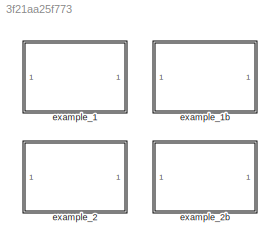
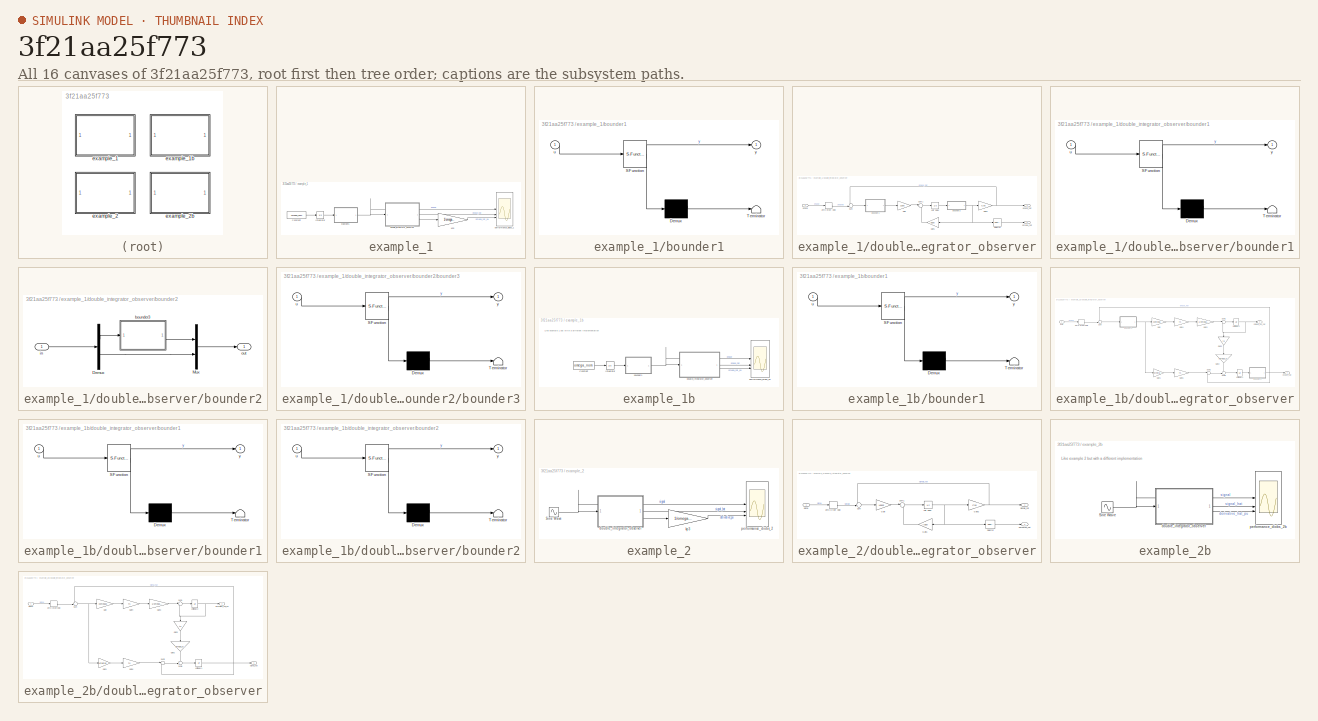
[diagram: thumbnail index - all 16 canvases of the model, root first then tree order]
MODEL slx_3f21aa25f773
KIND model
CONFIG AbsTol = auto
CONFIG EnableMultiTasking = off
CONFIG FixedStep = auto
CONFIG MaxStep = auto
CONFIG MinStep = auto
CONFIG RelTol = 1e-3
CONFIG SampleTimeConstraint = Unconstrained
CONFIG SolverName = VariableStepAuto
CONFIG StartTime = 0.0
CONFIG StopTime = 0.2
BLOCK [SubSystem] example_1
BLOCK [Constant] example_1/Constant
  Value = omega_nom
BLOCK [Integrator] example_1/Integrator
BLOCK [SubSystem] example_1/bounder1
  ErrorFcn = Stateflow.Translate.translate
  PermitHierarchicalResolution = ExplicitOnly
  SFBlockType = MATLAB Function
  TreatAsAtomicUnit = on
  TreatAsGroupedWhenPropagatingVariantConditions = off
BLOCK [Demux] example_1/bounder1/ Demux 
  Outputs = 1
BLOCK [S-Function] example_1/bounder1/ SFunction 
  EnableBusSupport = off
  FunctionName = sf_sfun
  PortCounts = [1 2]
  SFcnIsStateOwnerBlock = off
  SFunctionDeploymentMode = off
  Tag = Stateflow S-Function 1
BLOCK [Terminator] example_1/bounder1/ Terminator 
BLOCK [Inport] example_1/bounder1/u
BLOCK [Outport] example_1/bounder1/y
  VectorParamsAs1DForOutWhenUnconnected = off
BLOCK [SubSystem] example_1/double_integrator_observer
BLOCK [Gain] example_1/double_integrator_observer/Gain
  Gain = Ldso
  Multiplication = Matrix(K*u)
BLOCK [Gain] example_1/double_integrator_observer/Gain1
  Gain = Adso
  Multiplication = Matrix(K*u)
  NameLocation = top
BLOCK [Gain] example_1/double_integrator_observer/Gain2
  Gain = Cso
  Multiplication = Matrix(K*u)
BLOCK [Selector] example_1/double_integrator_observer/Selector
  IndexOptions = Index vector (dialog)
  Indices = 2
  InputPortWidth = 2
  OutputSizes = 1
BLOCK [Sum] example_1/double_integrator_observer/Sum
  Inputs = -+|
BLOCK [Sum] example_1/double_integrator_observer/Sum1
  Inputs = |++
BLOCK [UnitDelay] example_1/double_integrator_observer/Unit Delay
  HasFrameUpgradeWarning = on
  SampleTime = -1
BLOCK [ZeroOrderHold] example_1/double_integrator_observer/Zero-Order Hold
  SampleTime = ts
BLOCK [SubSystem] example_1/double_integrator_observer/bounder1
  ErrorFcn = Stateflow.Translate.translate
  PermitHierarchicalResolution = ExplicitOnly
  SFBlockType = MATLAB Function
  TreatAsAtomicUnit = on
  TreatAsGroupedWhenPropagatingVariantConditions = off
BLOCK [Demux] example_1/double_integrator_observer/bounder1/ Demux 
  Outputs = 1
BLOCK [S-Function] example_1/double_integrator_observer/bounder1/ SFunction 
  EnableBusSupport = off
  FunctionName = sf_sfun
  PortCounts = [1 2]
  SFcnIsStateOwnerBlock = off
  SFunctionDeploymentMode = off
  Tag = Stateflow S-Function 8
BLOCK [Terminator] example_1/double_integrator_observer/bounder1/ Terminator 
BLOCK [Inport] example_1/double_integrator_observer/bounder1/u
BLOCK [Outport] example_1/double_integrator_observer/bounder1/y
  VectorParamsAs1DForOutWhenUnconnected = off
BLOCK [SubSystem] example_1/double_integrator_observer/bounder2
BLOCK [Demux] example_1/double_integrator_observer/bounder2/Demux
  Outputs = 2
BLOCK [Mux] example_1/double_integrator_observer/bounder2/Mux
  DisplayOption = bar
  Inputs = 2
BLOCK [SubSystem] example_1/double_integrator_observer/bounder2/bounder3
  ErrorFcn = Stateflow.Translate.translate
  PermitHierarchicalResolution = ExplicitOnly
  SFBlockType = MATLAB Function
  TreatAsAtomicUnit = on
  TreatAsGroupedWhenPropagatingVariantConditions = off
BLOCK [Demux] example_1/double_integrator_observer/bounder2/bounder3/ Demux 
  Outputs = 1
BLOCK [S-Function] example_1/double_integrator_observer/bounder2/bounder3/ SFunction 
  EnableBusSupport = off
  FunctionName = sf_sfun
  PortCounts = [1 2]
  SFcnIsStateOwnerBlock = off
  SFunctionDeploymentMode = off
  Tag = Stateflow S-Function 2
BLOCK [Terminator] example_1/double_integrator_observer/bounder2/bounder3/ Terminator 
BLOCK [Inport] example_1/double_integrator_observer/bounder2/bounder3/u
BLOCK [Outport] example_1/double_integrator_observer/bounder2/bounder3/y
  VectorParamsAs1DForOutWhenUnconnected = off
BLOCK [Inport] example_1/double_integrator_observer/bounder2/in
BLOCK [Outport] example_1/double_integrator_observer/bounder2/out
BLOCK [Outport] example_1/double_integrator_observer/omega_hat
  Port = 2
BLOCK [Inport] example_1/double_integrator_observer/phase
BLOCK [Outport] example_1/double_integrator_observer/phase_hat
BLOCK [Gain] example_1/kp3
  Gain = 1/omega_nom
  OutDataTypeStr = Inherit: Same as input
  ParamDataTypeStr = Inherit: Same as input
  SaturateOnIntegerOverflow = on
BLOCK [Scope] example_1/performance_diobs_1
  Floating = off
  NumInputPorts = 3
  ScopeSpecificationString = Simulink.scopes.TimeScopeBlockCfg('CurrentConfiguration', extmgr.ConfigurationSet(extmgr.Configuration('Core','General UI',true,'DisplayFullSourceName',true,'ShowMainToolbar',true,'FigureColor',[0.129411764705882 0.129411764705882 0.129411764705882]),extmgr.Configuration('Sources','WiredSimulink',true,'DataLogging',false,'DataLoggingVariableName','ScopeData','DataLoggingLimitDataPoints',false,'Dat...<+2532ch>
BLOCK [SubSystem] example_1b
BLOCK [Constant] example_1b/Constant
  Value = omega_nom
BLOCK [Integrator] example_1b/Integrator
BLOCK [SubSystem] example_1b/bounder1
  ErrorFcn = Stateflow.Translate.translate
  PermitHierarchicalResolution = ExplicitOnly
  SFBlockType = MATLAB Function
  TreatAsAtomicUnit = on
  TreatAsGroupedWhenPropagatingVariantConditions = off
BLOCK [Demux] example_1b/bounder1/ Demux 
  Outputs = 1
BLOCK [S-Function] example_1b/bounder1/ SFunction 
  EnableBusSupport = off
  FunctionName = sf_sfun
  PortCounts = [1 2]
  SFcnIsStateOwnerBlock = off
  SFunctionDeploymentMode = off
  Tag = Stateflow S-Function 3
BLOCK [Terminator] example_1b/bounder1/ Terminator 
BLOCK [Inport] example_1b/bounder1/u
BLOCK [Outport] example_1b/bounder1/y
  VectorParamsAs1DForOutWhenUnconnected = off
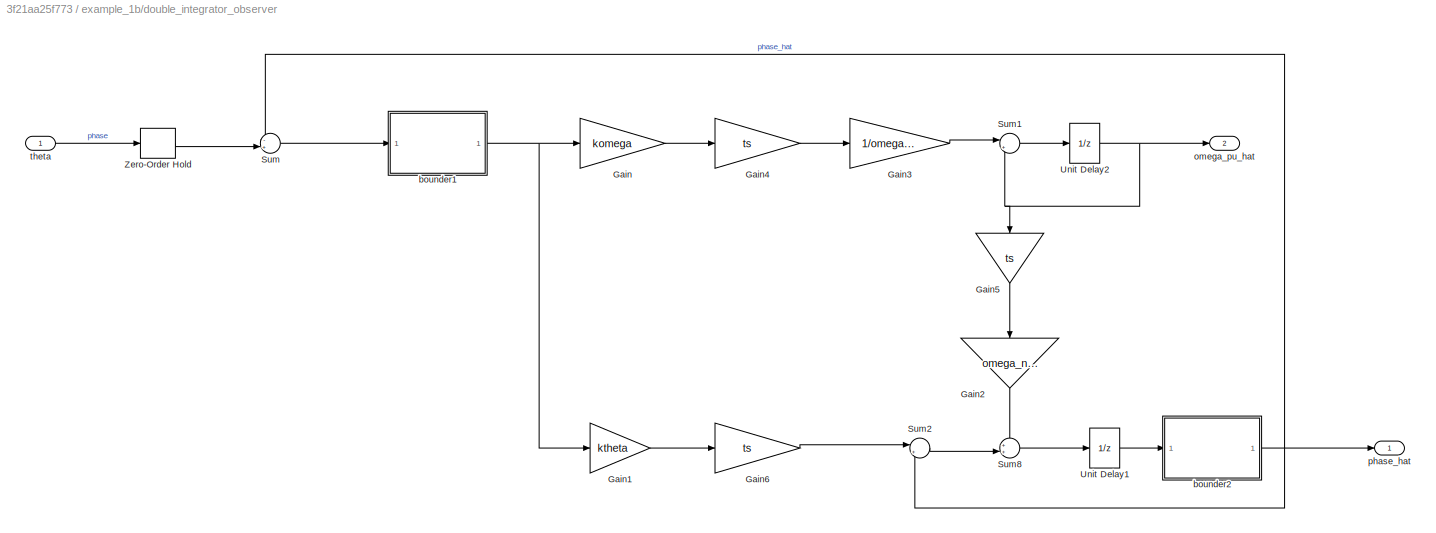
BLOCK [SubSystem] example_1b/double_integrator_observer
BLOCK [Gain] example_1b/double_integrator_observer/Gain
  Gain = komega
BLOCK [Gain] example_1b/double_integrator_observer/Gain1
  Gain = ktheta
BLOCK [Gain] example_1b/double_integrator_observer/Gain2
  Gain = omega_nom
  NameLocation = left
BLOCK [Gain] example_1b/double_integrator_observer/Gain3
  Gain = 1/omega_nom
BLOCK [Gain] example_1b/double_integrator_observer/Gain4
  Gain = ts
BLOCK [Gain] example_1b/double_integrator_observer/Gain5
  Gain = ts
  NameLocation = left
BLOCK [Gain] example_1b/double_integrator_observer/Gain6
  Gain = ts
BLOCK [Sum] example_1b/double_integrator_observer/Sum
  Inputs = -+|
BLOCK [Sum] example_1b/double_integrator_observer/Sum1
  Inputs = |++
BLOCK [Sum] example_1b/double_integrator_observer/Sum2
  Inputs = |++
BLOCK [Sum] example_1b/double_integrator_observer/Sum8
  Inputs = ++|
BLOCK [UnitDelay] example_1b/double_integrator_observer/Unit Delay1
  HasFrameUpgradeWarning = on
  NameLocation = top
  SampleTime = -1
BLOCK [UnitDelay] example_1b/double_integrator_observer/Unit Delay2
  HasFrameUpgradeWarning = on
  SampleTime = -1
BLOCK [ZeroOrderHold] example_1b/double_integrator_observer/Zero-Order Hold
  SampleTime = ts
BLOCK [SubSystem] example_1b/double_integrator_observer/bounder1
  ErrorFcn = Stateflow.Translate.translate
  NameLocation = top
  PermitHierarchicalResolution = ExplicitOnly
  SFBlockType = MATLAB Function
  TreatAsAtomicUnit = on
  TreatAsGroupedWhenPropagatingVariantConditions = off
BLOCK [Demux] example_1b/double_integrator_observer/bounder1/ Demux 
  Outputs = 1
BLOCK [S-Function] example_1b/double_integrator_observer/bounder1/ SFunction 
  EnableBusSupport = off
  FunctionName = sf_sfun
  PortCounts = [1 2]
  SFcnIsStateOwnerBlock = off
  SFunctionDeploymentMode = off
  Tag = Stateflow S-Function 76
BLOCK [Terminator] example_1b/double_integrator_observer/bounder1/ Terminator 
BLOCK [Inport] example_1b/double_integrator_observer/bounder1/u
BLOCK [Outport] example_1b/double_integrator_observer/bounder1/y
  VectorParamsAs1DForOutWhenUnconnected = off
BLOCK [SubSystem] example_1b/double_integrator_observer/bounder2
  ErrorFcn = Stateflow.Translate.translate
  NameLocation = top
  PermitHierarchicalResolution = ExplicitOnly
  SFBlockType = MATLAB Function
  TreatAsAtomicUnit = on
  TreatAsGroupedWhenPropagatingVariantConditions = off
BLOCK [Demux] example_1b/double_integrator_observer/bounder2/ Demux 
  Outputs = 1
BLOCK [S-Function] example_1b/double_integrator_observer/bounder2/ SFunction 
  EnableBusSupport = off
  FunctionName = sf_sfun
  PortCounts = [1 2]
  SFcnIsStateOwnerBlock = off
  SFunctionDeploymentMode = off
  Tag = Stateflow S-Function 77
BLOCK [Terminator] example_1b/double_integrator_observer/bounder2/ Terminator 
BLOCK [Inport] example_1b/double_integrator_observer/bounder2/u
BLOCK [Outport] example_1b/double_integrator_observer/bounder2/y
  VectorParamsAs1DForOutWhenUnconnected = off
BLOCK [Outport] example_1b/double_integrator_observer/omega_pu_hat
  Port = 2
  VectorParamsAs1DForOutWhenUnconnected = off
BLOCK [Outport] example_1b/double_integrator_observer/phase_hat
  VectorParamsAs1DForOutWhenUnconnected = off
BLOCK [Inport] example_1b/double_integrator_observer/theta
BLOCK [Scope] example_1b/performance_diobs_1b
  Floating = off
  NumInputPorts = 3
  ScopeSpecificationString = Simulink.scopes.TimeScopeBlockCfg('CurrentConfiguration', extmgr.ConfigurationSet(extmgr.Configuration('Core','General UI',true,'DisplayFullSourceName',true,'ShowMainToolbar',true,'FigureColor',[0.129411764705882 0.129411764705882 0.129411764705882]),extmgr.Configuration('Sources','WiredSimulink',true,'DataLogging',false,'DataLoggingVariableName','ScopeData','DataLoggingLimitDataPoints',false,'Dat...<+2532ch>
BLOCK [SubSystem] example_2
BLOCK [Sin] example_2/Sine Wave
  Frequency = omega_nom
  SampleTime = 0
BLOCK [SubSystem] example_2/double_integrator_observer
BLOCK [Gain] example_2/double_integrator_observer/Gain
  Gain = Ldso2
  Multiplication = Matrix(K*u)
BLOCK [Gain] example_2/double_integrator_observer/Gain1
  Gain = Adso
  Multiplication = Matrix(K*u)
  NameLocation = top
BLOCK [Gain] example_2/double_integrator_observer/Gain2
  Gain = Cso
  Multiplication = Matrix(K*u)
BLOCK [Selector] example_2/double_integrator_observer/Selector
  IndexOptions = Index vector (dialog)
  Indices = 2
  InputPortWidth = 2
  OutputSizes = 1
BLOCK [Sum] example_2/double_integrator_observer/Sum
  Inputs = -+|
BLOCK [Sum] example_2/double_integrator_observer/Sum1
  Inputs = |++
BLOCK [UnitDelay] example_2/double_integrator_observer/Unit Delay
  HasFrameUpgradeWarning = on
  SampleTime = -1
BLOCK [ZeroOrderHold] example_2/double_integrator_observer/Zero-Order Hold
  SampleTime = ts
BLOCK [Outport] example_2/double_integrator_observer/derivative_hat
  Port = 2
BLOCK [Inport] example_2/double_integrator_observer/signal
BLOCK [Outport] example_2/double_integrator_observer/signald_hat
BLOCK [Gain] example_2/kp3
  Gain = 1/omega_nom
  OutDataTypeStr = Inherit: Same as input
  ParamDataTypeStr = Inherit: Same as input
  SaturateOnIntegerOverflow = on
BLOCK [Scope] example_2/performance_diobs_2
  Floating = off
  NumInputPorts = 3
  ScopeSpecificationString = Simulink.scopes.TimeScopeBlockCfg('CurrentConfiguration', extmgr.ConfigurationSet(extmgr.Configuration('Core','General UI',true,'DisplayFullSourceName',true,'ShowMainToolbar',true,'FigureColor',[0.129411764705882 0.129411764705882 0.129411764705882]),extmgr.Configuration('Sources','WiredSimulink',true,'DataLogging',false,'DataLoggingVariableName','ScopeData','DataLoggingLimitDataPoints',false,'Dat...<+2539ch>
BLOCK [SubSystem] example_2b
BLOCK [Sin] example_2b/Sine Wave
  Frequency = omega_nom
  SampleTime = 0
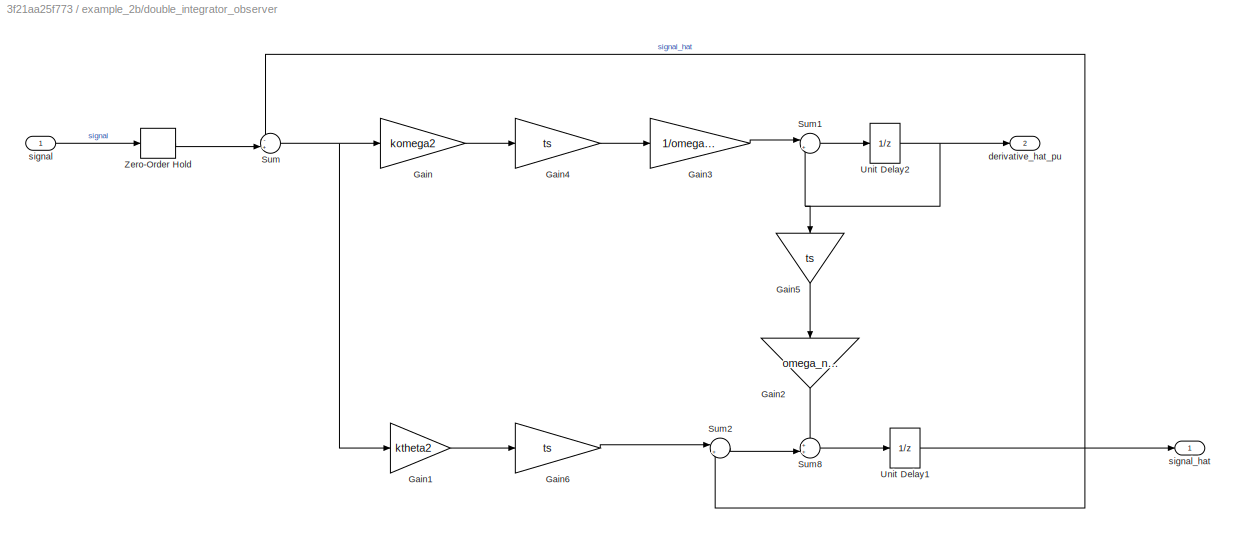
BLOCK [SubSystem] example_2b/double_integrator_observer
BLOCK [Gain] example_2b/double_integrator_observer/Gain
  Gain = komega2
BLOCK [Gain] example_2b/double_integrator_observer/Gain1
  Gain = ktheta2
BLOCK [Gain] example_2b/double_integrator_observer/Gain2
  Gain = omega_nom
  NameLocation = left
BLOCK [Gain] example_2b/double_integrator_observer/Gain3
  Gain = 1/omega_nom
BLOCK [Gain] example_2b/double_integrator_observer/Gain4
  Gain = ts
BLOCK [Gain] example_2b/double_integrator_observer/Gain5
  Gain = ts
  NameLocation = left
BLOCK [Gain] example_2b/double_integrator_observer/Gain6
  Gain = ts
BLOCK [Sum] example_2b/double_integrator_observer/Sum
  Inputs = -+|
BLOCK [Sum] example_2b/double_integrator_observer/Sum1
  Inputs = |++
BLOCK [Sum] example_2b/double_integrator_observer/Sum2
  Inputs = |++
BLOCK [Sum] example_2b/double_integrator_observer/Sum8
  Inputs = ++|
BLOCK [UnitDelay] example_2b/double_integrator_observer/Unit Delay1
  HasFrameUpgradeWarning = on
  NameLocation = top
  SampleTime = -1
BLOCK [UnitDelay] example_2b/double_integrator_observer/Unit Delay2
  HasFrameUpgradeWarning = on
  SampleTime = -1
BLOCK [ZeroOrderHold] example_2b/double_integrator_observer/Zero-Order Hold
  SampleTime = ts
BLOCK [Outport] example_2b/double_integrator_observer/derivative_hat_pu
  Port = 2
  VectorParamsAs1DForOutWhenUnconnected = off
BLOCK [Inport] example_2b/double_integrator_observer/signal
BLOCK [Outport] example_2b/double_integrator_observer/signal_hat
  VectorParamsAs1DForOutWhenUnconnected = off
BLOCK [Scope] example_2b/performance_diobs_2b
  Floating = off
  NumInputPorts = 3
  ScopeSpecificationString = Simulink.scopes.TimeScopeBlockCfg('CurrentConfiguration', extmgr.ConfigurationSet(extmgr.Configuration('Core','General UI',true,'DisplayFullSourceName',true,'ShowMainToolbar',true,'FigureColor',[0.129411764705882 0.129411764705882 0.129411764705882]),extmgr.Configuration('Sources','WiredSimulink',true,'DataLogging',false,'DataLoggingVariableName','ScopeData','DataLoggingLimitDataPoints',false,'Dat...<+2543ch>
ANNOTATION example_1b: Like example 1 but with a different implementation
ANNOTATION example_2b: Like example 2 but with a different implementation
LINE example_1/Constant:1 -> example_1/Integrator:1
LINE example_1/Integrator:1 -> example_1/bounder1:1
NET example_1/bounder1:1 -> example_1/double_integrator_observer:1, example_1/performance_diobs_1:1
LINE example_1/double_integrator_observer/Gain1:1 -> example_1/double_integrator_observer/Sum1:2
NET example_1/double_integrator_observer/Gain2:1 -> example_1/double_integrator_observer/Sum:1, example_1/double_integrator_observer/phase_hat:1
LINE example_1/double_integrator_observer/Gain:1 -> example_1/double_integrator_observer/Sum1:1
LINE example_1/double_integrator_observer/Selector:1 -> example_1/double_integrator_observer/omega_hat:1
LINE example_1/double_integrator_observer/Sum1:1 -> example_1/double_integrator_observer/Unit Delay:1
LINE example_1/double_integrator_observer/Sum:1 -> example_1/double_integrator_observer/bounder1:1
LINE example_1/double_integrator_observer/Unit Delay:1 -> example_1/double_integrator_observer/bounder2:1
LINE example_1/double_integrator_observer/Zero-Order Hold:1 -> example_1/double_integrator_observer/Sum:2
LINE example_1/double_integrator_observer/bounder1:1 -> example_1/double_integrator_observer/Gain:1
LINE example_1/double_integrator_observer/bounder2/Demux:1 -> example_1/double_integrator_observer/bounder2/bounder3:1
LINE example_1/double_integrator_observer/bounder2/Demux:2 -> example_1/double_integrator_observer/bounder2/Mux:2
LINE example_1/double_integrator_observer/bounder2/Mux:1 -> example_1/double_integrator_observer/bounder2/out:1
LINE example_1/double_integrator_observer/bounder2/bounder3:1 -> example_1/double_integrator_observer/bounder2/Mux:1
LINE example_1/double_integrator_observer/bounder2/in:1 -> example_1/double_integrator_observer/bounder2/Demux:1
NET example_1/double_integrator_observer/bounder2:1 -> example_1/double_integrator_observer/Gain1:1, example_1/double_integrator_observer/Gain2:1, example_1/double_integrator_observer/Selector:1
LINE example_1/double_integrator_observer/phase:1 -> example_1/double_integrator_observer/Zero-Order Hold:1
LINE example_1/double_integrator_observer:1 -> example_1/performance_diobs_1:2
LINE example_1/double_integrator_observer:2 -> example_1/kp3:1
LINE example_1/kp3:1 -> example_1/performance_diobs_1:3
LINE example_1b/Constant:1 -> example_1b/Integrator:1
LINE example_1b/Integrator:1 -> example_1b/bounder1:1
NET example_1b/bounder1:1 -> example_1b/double_integrator_observer:1, example_1b/performance_diobs_1b:1
LINE example_1b/double_integrator_observer/Gain1:1 -> example_1b/double_integrator_observer/Gain6:1
LINE example_1b/double_integrator_observer/Gain2:1 -> example_1b/double_integrator_observer/Sum8:1
LINE example_1b/double_integrator_observer/Gain3:1 -> example_1b/double_integrator_observer/Sum1:1
LINE example_1b/double_integrator_observer/Gain4:1 -> example_1b/double_integrator_observer/Gain3:1
LINE example_1b/double_integrator_observer/Gain5:1 -> example_1b/double_integrator_observer/Gain2:1
LINE example_1b/double_integrator_observer/Gain6:1 -> example_1b/double_integrator_observer/Sum2:1
LINE example_1b/double_integrator_observer/Gain:1 -> example_1b/double_integrator_observer/Gain4:1
LINE example_1b/double_integrator_observer/Sum1:1 -> example_1b/double_integrator_observer/Unit Delay2:1
LINE example_1b/double_integrator_observer/Sum2:1 -> example_1b/double_integrator_observer/Sum8:2
LINE example_1b/double_integrator_observer/Sum8:1 -> example_1b/double_integrator_observer/Unit Delay1:1
LINE example_1b/double_integrator_observer/Sum:1 -> example_1b/double_integrator_observer/bounder1:1
LINE example_1b/double_integrator_observer/Unit Delay1:1 -> example_1b/double_integrator_observer/bounder2:1
NET example_1b/double_integrator_observer/Unit Delay2:1 -> example_1b/double_integrator_observer/Gain5:1, example_1b/double_integrator_observer/Sum1:2, example_1b/double_integrator_observer/omega_pu_hat:1
LINE example_1b/double_integrator_observer/Zero-Order Hold:1 -> example_1b/double_integrator_observer/Sum:2
NET example_1b/double_integrator_observer/bounder1:1 -> example_1b/double_integrator_observer/Gain1:1, example_1b/double_integrator_observer/Gain:1
NET example_1b/double_integrator_observer/bounder2:1 -> example_1b/double_integrator_observer/Sum2:2, example_1b/double_integrator_observer/Sum:1, example_1b/double_integrator_observer/phase_hat:1
LINE example_1b/double_integrator_observer/theta:1 -> example_1b/double_integrator_observer/Zero-Order Hold:1
LINE example_1b/double_integrator_observer:1 -> example_1b/performance_diobs_1b:2
LINE example_1b/double_integrator_observer:2 -> example_1b/performance_diobs_1b:3
NET example_2/Sine Wave:1 -> example_2/double_integrator_observer:1, example_2/performance_diobs_2:1
LINE example_2/double_integrator_observer/Gain1:1 -> example_2/double_integrator_observer/Sum1:2
NET example_2/double_integrator_observer/Gain2:1 -> example_2/double_integrator_observer/Sum:1, example_2/double_integrator_observer/signald_hat:1
LINE example_2/double_integrator_observer/Gain:1 -> example_2/double_integrator_observer/Sum1:1
LINE example_2/double_integrator_observer/Selector:1 -> example_2/double_integrator_observer/derivative_hat:1
LINE example_2/double_integrator_observer/Sum1:1 -> example_2/double_integrator_observer/Unit Delay:1
LINE example_2/double_integrator_observer/Sum:1 -> example_2/double_integrator_observer/Gain:1
NET example_2/double_integrator_observer/Unit Delay:1 -> example_2/double_integrator_observer/Gain1:1, example_2/double_integrator_observer/Gain2:1, example_2/double_integrator_observer/Selector:1
LINE example_2/double_integrator_observer/Zero-Order Hold:1 -> example_2/double_integrator_observer/Sum:2
LINE example_2/double_integrator_observer/signal:1 -> example_2/double_integrator_observer/Zero-Order Hold:1
LINE example_2/double_integrator_observer:1 -> example_2/performance_diobs_2:2
LINE example_2/double_integrator_observer:2 -> example_2/kp3:1
LINE example_2/kp3:1 -> example_2/performance_diobs_2:3
NET example_2b/Sine Wave:1 -> example_2b/double_integrator_observer:1, example_2b/performance_diobs_2b:1
LINE example_2b/double_integrator_observer/Gain1:1 -> example_2b/double_integrator_observer/Gain6:1
LINE example_2b/double_integrator_observer/Gain2:1 -> example_2b/double_integrator_observer/Sum8:1
LINE example_2b/double_integrator_observer/Gain3:1 -> example_2b/double_integrator_observer/Sum1:1
LINE example_2b/double_integrator_observer/Gain4:1 -> example_2b/double_integrator_observer/Gain3:1
LINE example_2b/double_integrator_observer/Gain5:1 -> example_2b/double_integrator_observer/Gain2:1
LINE example_2b/double_integrator_observer/Gain6:1 -> example_2b/double_integrator_observer/Sum2:1
LINE example_2b/double_integrator_observer/Gain:1 -> example_2b/double_integrator_observer/Gain4:1
LINE example_2b/double_integrator_observer/Sum1:1 -> example_2b/double_integrator_observer/Unit Delay2:1
LINE example_2b/double_integrator_observer/Sum2:1 -> example_2b/double_integrator_observer/Sum8:2
LINE example_2b/double_integrator_observer/Sum8:1 -> example_2b/double_integrator_observer/Unit Delay1:1
NET example_2b/double_integrator_observer/Sum:1 -> example_2b/double_integrator_observer/Gain1:1, example_2b/double_integrator_observer/Gain:1
NET example_2b/double_integrator_observer/Unit Delay1:1 -> example_2b/double_integrator_observer/Sum2:2, example_2b/double_integrator_observer/Sum:1, example_2b/double_integrator_observer/signal_hat:1
NET example_2b/double_integrator_observer/Unit Delay2:1 -> example_2b/double_integrator_observer/Gain5:1, example_2b/double_integrator_observer/Sum1:2, example_2b/double_integrator_observer/derivative_hat_pu:1
LINE example_2b/double_integrator_observer/Zero-Order Hold:1 -> example_2b/double_integrator_observer/Sum:2
LINE example_2b/double_integrator_observer/signal:1 -> example_2b/double_integrator_observer/Zero-Order Hold:1
LINE example_2b/double_integrator_observer:1 -> example_2b/performance_diobs_2b:2
LINE example_2b/double_integrator_observer:2 -> example_2b/performance_diobs_2b:3
note: NET lines group one-source signal fan-out (src -> all destinations, sorted); 1:1 wires keep LINE
CHART example_1/bounder1 states=1 transitions=1
  STATE_LABEL 'eML_blk_kernel()'
  STATE_LABEL 'SCRIPT:\nfunction y = bounder(u)\n    \n    y = -pi + mod(u+3*pi,2*pi);\n    \nend\n\n'
CHART example_1/double_integrator_observer/bounder2/bounder3 states=1 transitions=1
  STATE_LABEL 'eML_blk_kernel()'
  STATE_LABEL 'SCRIPT:\nfunction y = bounder(u)\n    \n    y = -pi + mod(u+3*pi,2*pi);\n    \nend\n\n'
CHART example_1b/bounder1 states=1 transitions=1
  STATE_LABEL 'eML_blk_kernel()'
  STATE_LABEL 'SCRIPT:\nfunction y = bounder(u)\n    \n    y = -pi + mod(u+3*pi,2*pi);\n    \nend\n\n'
CHART example_1/double_integrator_observer/bounder1 states=1 transitions=1
  STATE_LABEL 'eML_blk_kernel()'
  STATE_LABEL 'SCRIPT:\nfunction y = bounder(u)\n    \n    y = -pi + mod(u+3*pi,2*pi);\n    \nend\n\n'
CHART example_1b/double_integrator_observer/bounder1 states=1 transitions=1
  STATE_LABEL 'eML_blk_kernel()'
  STATE_LABEL 'SCRIPT:\nfunction y = bounder(u)\n    \n    y = -pi + mod(u+3*pi,2*pi);\nend\n\n'
CHART example_1b/double_integrator_observer/bounder2 states=1 transitions=1
  STATE_LABEL 'eML_blk_kernel()'
  STATE_LABEL 'SCRIPT:\nfunction y = bounder(u)\n    \n    u = -pi + mod(u+3*pi,2*pi);\n    \n    y = u;\nend\n\n'
CHART  states=0 transitions=0
CHART  states=0 transitions=0
CHART  states=0 transitions=0
CHART  states=0 transitions=0
CHART  states=0 transitions=0
CHART  states=0 transitions=0
